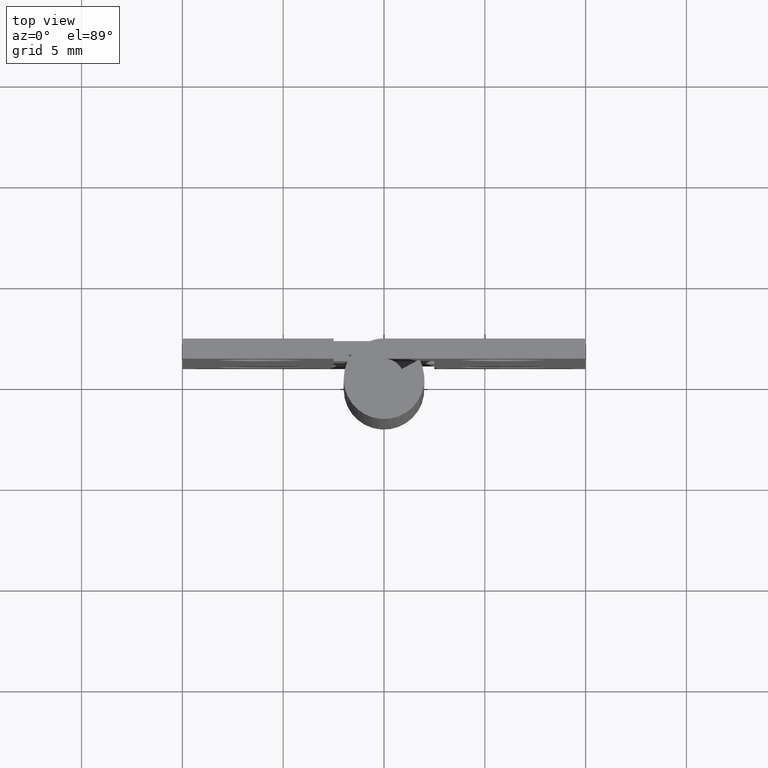
[diagram: clean part render]
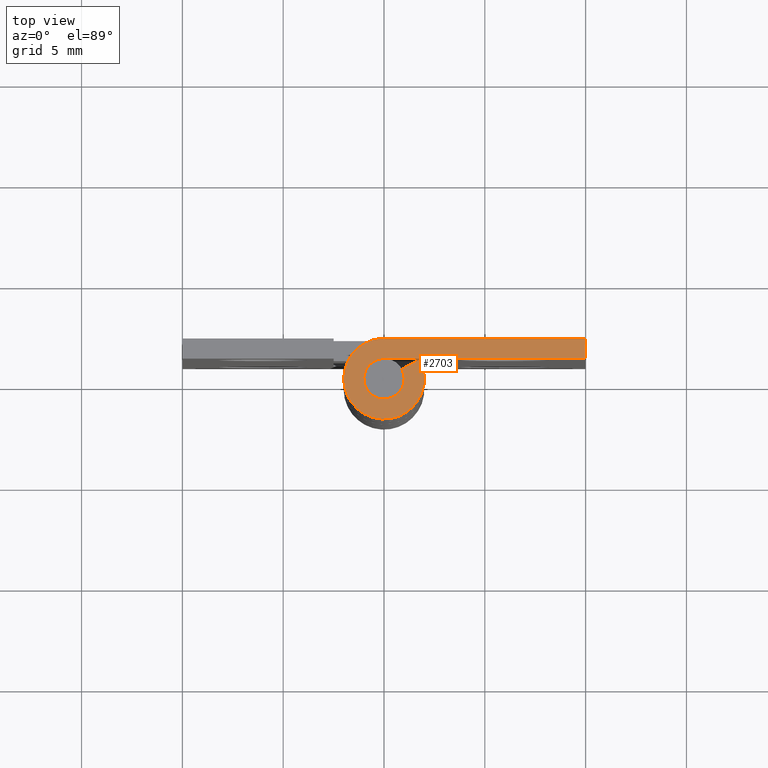
[diagram: same view with one face highlighted and labeled with its STEP entity id]
A machine part, top view. The second image highlights one B-rep face of the part: STEP entity #2703.
In plain terms, the highlighted face is a freeform B-spline surface patch.
Its self-contained STEP definition (entity closure, byte-faithful):
#2626=CARTESIAN_POINT('',(-2.599322432834664,-2.199489983760330,30.0));
#2627=CARTESIAN_POINT('',(10.599396609554811,-2.199489983760330,30.0));
#2628=CARTESIAN_POINT('',(-2.599322432834664,2.199785351279322,30.0));
#2629=CARTESIAN_POINT('',(10.599396609554811,2.199785351279322,30.0));
#2630=B_SPLINE_SURFACE_WITH_KNOTS('',1,1,((#2626,#2628),(#2627,#2629)),.UNSPECIFIED.,.F.,.F.,.U.,(2,2),(2,2),(0.0,13.198719042389470),(0.0,4.399275335039652),.UNSPECIFIED.);
#2631=CARTESIAN_POINT('',(1.759971590679805,0.950000000000000,30.0));
#2632=VERTEX_POINT('',#2631);
#2633=CARTESIAN_POINT('',(0.0,2.0,30.0));
#2634=VERTEX_POINT('',#2633);
#2635=CARTESIAN_POINT('',(1.759971590679804,0.950000000000000,30.0));
#2636=CARTESIAN_POINT('',(2.483544518215584,-0.390492417103144,30.000000000000007));
#2637=CARTESIAN_POINT('',(1.383518044628769,-1.444256840103792,30.0));
#2638=CARTESIAN_POINT('',(0.283491571041955,-2.498021263104437,30.000000000000007));
#2639=CARTESIAN_POINT('',(-1.024695076595959,-1.717556403731767,30.0));
#2640=CARTESIAN_POINT('',(-2.332881724233873,-0.937091544359097,30.000000000000007));
#2641=CARTESIAN_POINT('',(-1.928096575312494,0.531454227820451,30.0));
#2642=CARTESIAN_POINT('',(-1.523311426391115,2.000000000000000,30.000000000000007));
#2643=CARTESIAN_POINT('',(0.0,2.0,30.0));
#2651=(BOUNDED_CURVE()B_SPLINE_CURVE(2,(#2635,#2636,#2637,#2638,#2639,#2640,#2641,#2642,#2643),.UNSPECIFIED.,.F.,.U.)B_SPLINE_CURVE_WITH_KNOTS((3,2,2,2,3),(0.0,0.250000000000000,0.500000000000000,0.750000000000000,1.0),.UNSPECIFIED.)CURVE()GEOMETRIC_REPRESENTATION_ITEM()RATIONAL_B_SPLINE_CURVE((1.0,0.795527219493534,1.0,0.795527219493534,1.0,0.795527219493534,1.0,0.795527219493534,1.0))REPRESENTATION_ITEM(''));
#2652=EDGE_CURVE('',#2632,#2634,#2651,.T.);
#2653=ORIENTED_EDGE('',*,*,#2652,.F.);
#2654=CARTESIAN_POINT('',(0.879985795339902,0.475000000000000,30.0));
#2655=VERTEX_POINT('',#2654);
#2656=CARTESIAN_POINT('',(0.879985795339902,0.475000000000000,30.0));
#2657=CARTESIAN_POINT('',(1.759971590679805,0.950000000000000,30.0));
#2658=QUASI_UNIFORM_CURVE('',1,(#2656,#2657),.UNSPECIFIED.,.F.,.U.);
#2659=EDGE_CURVE('',#2655,#2632,#2658,.T.);
#2660=ORIENTED_EDGE('',*,*,#2659,.F.);
#2661=CARTESIAN_POINT('',(0.0,1.0,30.0));
#2662=VERTEX_POINT('',#2661);
#2663=CARTESIAN_POINT('',(0.879985795339902,0.475000000000000,30.0));
#2664=CARTESIAN_POINT('',(1.241772259107792,-0.195246208551572,30.000000000000007));
#2665=CARTESIAN_POINT('',(0.691759022314384,-0.722128420051896,30.0));
#2666=CARTESIAN_POINT('',(0.141745785520978,-1.249010631552219,30.000000000000007));
#2667=CARTESIAN_POINT('',(-0.512347538297979,-0.858778201865884,30.0));
#2668=CARTESIAN_POINT('',(-1.166440862116937,-0.468545772179548,30.000000000000007));
#2669=CARTESIAN_POINT('',(-0.964048287656247,0.265727113910226,30.0));
#2670=CARTESIAN_POINT('',(-0.761655713195557,1.0,30.000000000000007));
#2671=CARTESIAN_POINT('',(0.0,1.0,30.0));
#2679=(BOUNDED_CURVE()B_SPLINE_CURVE(2,(#2663,#2664,#2665,#2666,#2667,#2668,#2669,#2670,#2671),.UNSPECIFIED.,.F.,.U.)B_SPLINE_CURVE_WITH_KNOTS((3,2,2,2,3),(0.0,0.250000000000000,0.500000000000000,0.750000000000000,1.0),.UNSPECIFIED.)CURVE()GEOMETRIC_REPRESENTATION_ITEM()RATIONAL_B_SPLINE_CURVE((1.0,0.795527219493534,1.0,0.795527219493534,1.0,0.795527219493534,1.0,0.795527219493534,1.0))REPRESENTATION_ITEM(''));
#2680=EDGE_CURVE('',#2655,#2662,#2679,.T.);
#2681=ORIENTED_EDGE('',*,*,#2680,.T.);
#2682=CARTESIAN_POINT('',(10.0,1.0,30.0));
#2683=VERTEX_POINT('',#2682);
#2684=CARTESIAN_POINT('',(10.0,1.0,30.0));
#2685=CARTESIAN_POINT('',(0.0,1.0,30.0));
#2686=QUASI_UNIFORM_CURVE('',1,(#2684,#2685),.UNSPECIFIED.,.F.,.U.);
#2687=EDGE_CURVE('',#2683,#2662,#2686,.T.);
#2688=ORIENTED_EDGE('',*,*,#2687,.F.);
#2689=CARTESIAN_POINT('',(10.0,2.0,30.0));
#2690=VERTEX_POINT('',#2689);
#2691=CARTESIAN_POINT('',(10.0,2.0,30.0));
#2692=CARTESIAN_POINT('',(10.0,1.0,30.0));
#2693=QUASI_UNIFORM_CURVE('',1,(#2691,#2692),.UNSPECIFIED.,.F.,.U.);
#2694=EDGE_CURVE('',#2690,#2683,#2693,.T.);
#2695=ORIENTED_EDGE('',*,*,#2694,.F.);
#2696=CARTESIAN_POINT('',(0.0,2.0,30.0));
#2697=CARTESIAN_POINT('',(10.0,2.0,30.0));
#2698=QUASI_UNIFORM_CURVE('',1,(#2696,#2697),.UNSPECIFIED.,.F.,.U.);
#2699=EDGE_CURVE('',#2634,#2690,#2698,.T.);
#2700=ORIENTED_EDGE('',*,*,#2699,.F.);
#2701=EDGE_LOOP('',(#2653,#2660,#2681,#2688,#2695,#2700));
#2702=FACE_OUTER_BOUND('',#2701,.T.);
#2703=ADVANCED_FACE('',(#2702),#2630,.T.);